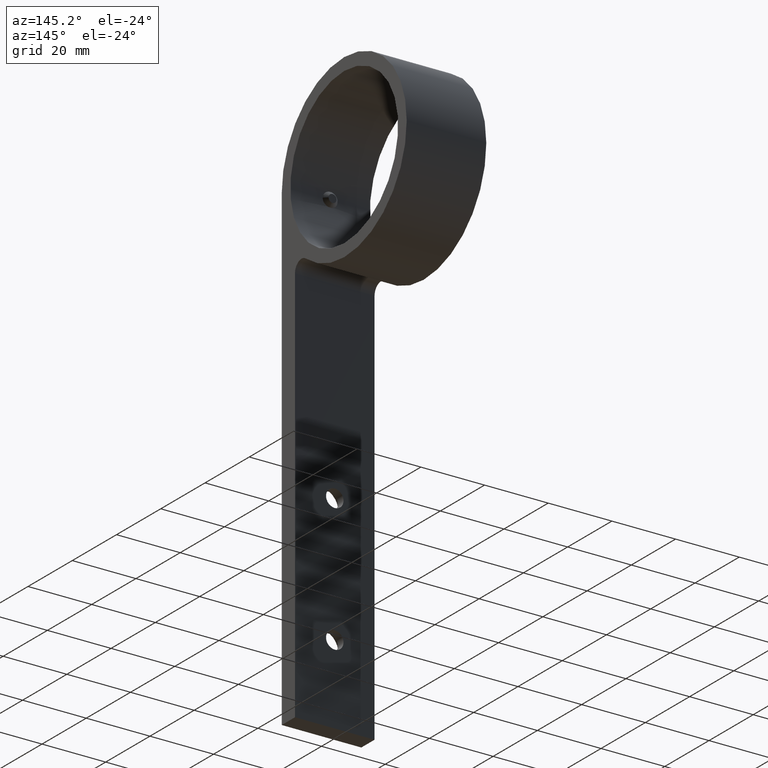
[diagram: clean part render]
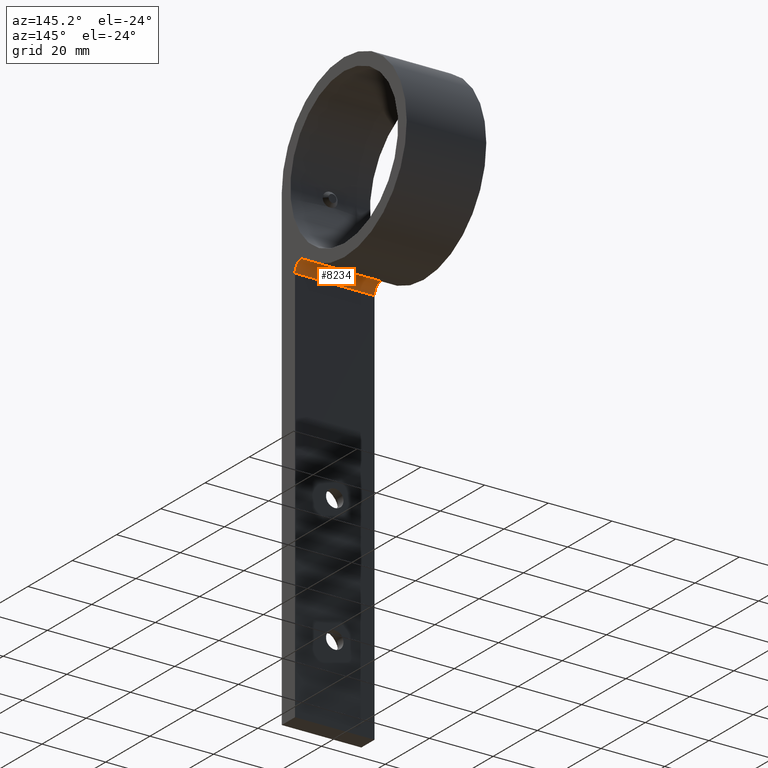
[diagram: same view with one face highlighted and labeled with its STEP entity id]
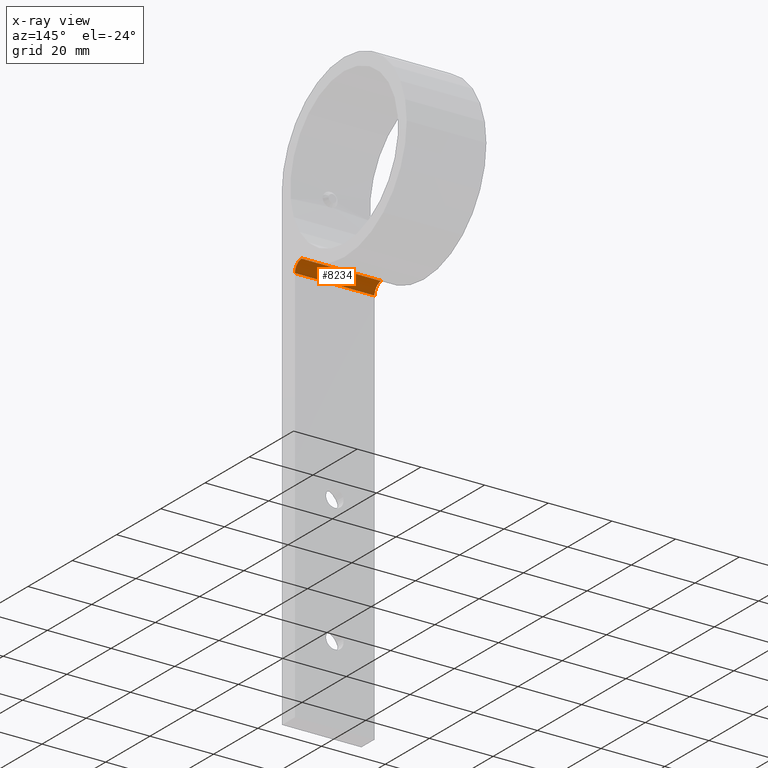
[diagram: x-ray of the same camera — body ghosted, the highlighted face saturated]
A machine part, auxiliary view. The second image highlights one B-rep face of the part: STEP entity #8234.
The next image is the same camera in x-ray: the body ghosted, the highlighted face saturated — about 0% of this face is hidden behind the body in this view.
In plain terms, the highlighted cylindrical surface (edge-blend (fillet) strip) has radius 3 mm, axis along (-1, -0, -0).
Its self-contained STEP definition (entity closure, byte-faithful):
#22 = CARTESIAN_POINT ( 'NONE',  ( 12.50000000000000000, 8.999999999999989300, -21.61706725018233800 ) ) ;
#492 = DIRECTION ( 'NONE',  ( -1.000000000000000000, -0.0000000000000000000, -0.0000000000000000000 ) ) ;
#707 = CARTESIAN_POINT ( 'NONE',  ( 12.50000000000000000, 8.999999999999989300, -24.61706725018233800 ) ) ;
#1142 = CARTESIAN_POINT ( 'NONE',  ( -12.50000000000000000, 5.999999999999988500, -24.61706725018234100 ) ) ;
#1183 = CIRCLE ( 'NONE', #12856, 2.999999999999999100 ) ;
#1580 = DIRECTION ( 'NONE',  ( 1.000000000000000000, 0.0000000000000000000, 0.0000000000000000000 ) ) ;
#2068 = CARTESIAN_POINT ( 'NONE',  ( 12.50000000000000000, 8.999999999999989300, -24.61706725018233800 ) ) ;
#2075 = VERTEX_POINT ( 'NONE', #1142 ) ;
#2151 = FACE_OUTER_BOUND ( 'NONE', #10293, .T. ) ;
#2275 = EDGE_CURVE ( 'NONE', #4761, #5673, #13289, .T. ) ;
#3159 = DIRECTION ( 'NONE',  ( -1.000000000000000000, -0.0000000000000000000, -0.0000000000000000000 ) ) ;
#3876 = DIRECTION ( 'NONE',  ( -1.000000000000000000, -0.0000000000000000000, -0.0000000000000000000 ) ) ;
#4679 = EDGE_CURVE ( 'NONE', #2075, #11576, #13284, .T. ) ;
#4737 = CARTESIAN_POINT ( 'NONE',  ( -12.50000000000000000, 8.999999999999989300, -24.61706725018233800 ) ) ;
#4761 = VERTEX_POINT ( 'NONE', #22 ) ;
#4801 = DIRECTION ( 'NONE',  ( 0.0000000000000000000, 0.0000000000000000000, -1.000000000000000000 ) ) ;
#4847 = ORIENTED_EDGE ( 'NONE', *, *, #2275, .F. ) ;
#5673 = VERTEX_POINT ( 'NONE', #13278 ) ;
#5824 = AXIS2_PLACEMENT_3D ( 'NONE', #2068, #3159, #6335 ) ;
#6080 = CARTESIAN_POINT ( 'NONE',  ( 12.50000000000000000, 5.999999999999988500, -24.61706725018234100 ) ) ;
#6335 = DIRECTION ( 'NONE',  ( 0.0000000000000000000, 0.0000000000000000000, 1.000000000000000000 ) ) ;
#7038 = CARTESIAN_POINT ( 'NONE',  ( 12.50000000000000000, 5.999999999999988500, -24.61706725018233800 ) ) ;
#7084 = DIRECTION ( 'NONE',  ( 1.000000000000000000, 0.0000000000000000000, 0.0000000000000000000 ) ) ;
#7438 = ORIENTED_EDGE ( 'NONE', *, *, #4679, .F. ) ;
#8015 = CARTESIAN_POINT ( 'NONE',  ( 12.50000000000000000, 8.999999999999989300, -21.61706725018233800 ) ) ;
#8234 = ADVANCED_FACE ( 'NONE', ( #2151 ), #11149, .F. ) ;
#8432 = ORIENTED_EDGE ( 'NONE', *, *, #8695, .F. ) ;
#8695 = EDGE_CURVE ( 'NONE', #5673, #2075, #1183, .T. ) ;
#9595 = VECTOR ( 'NONE', #7084, 1000.000000000000000 ) ;
#9851 = EDGE_CURVE ( 'NONE', #11576, #4761, #11475, .T. ) ;
#10293 = EDGE_LOOP ( 'NONE', ( #4847, #13439, #7438, #8432 ) ) ;
#10412 = VECTOR ( 'NONE', #492, 1000.000000000000000 ) ;
#10693 = AXIS2_PLACEMENT_3D ( 'NONE', #707, #3876, #4801 ) ;
#11149 = CYLINDRICAL_SURFACE ( 'NONE', #5824, 2.999999999999999100 ) ;
#11475 = CIRCLE ( 'NONE', #10693, 2.999999999999999100 ) ;
#11576 = VERTEX_POINT ( 'NONE', #6080 ) ;
#12856 = AXIS2_PLACEMENT_3D ( 'NONE', #4737, #1580, #13197 ) ;
#13197 = DIRECTION ( 'NONE',  ( 0.0000000000000000000, 0.0000000000000000000, -1.000000000000000000 ) ) ;
#13278 = CARTESIAN_POINT ( 'NONE',  ( -12.50000000000000000, 8.999999999999989300, -21.61706725018233800 ) ) ;
#13284 = LINE ( 'NONE', #7038, #9595 ) ;
#13289 = LINE ( 'NONE', #8015, #10412 ) ;
#13439 = ORIENTED_EDGE ( 'NONE', *, *, #9851, .F. ) ;